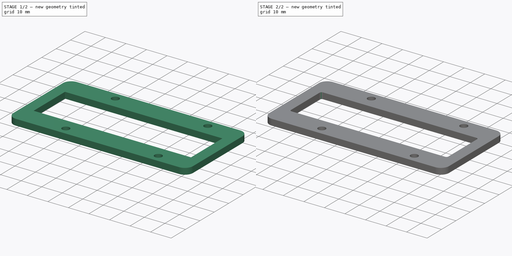
[diagram: build sequence overview — one tinted view per stage of 2, left to right]
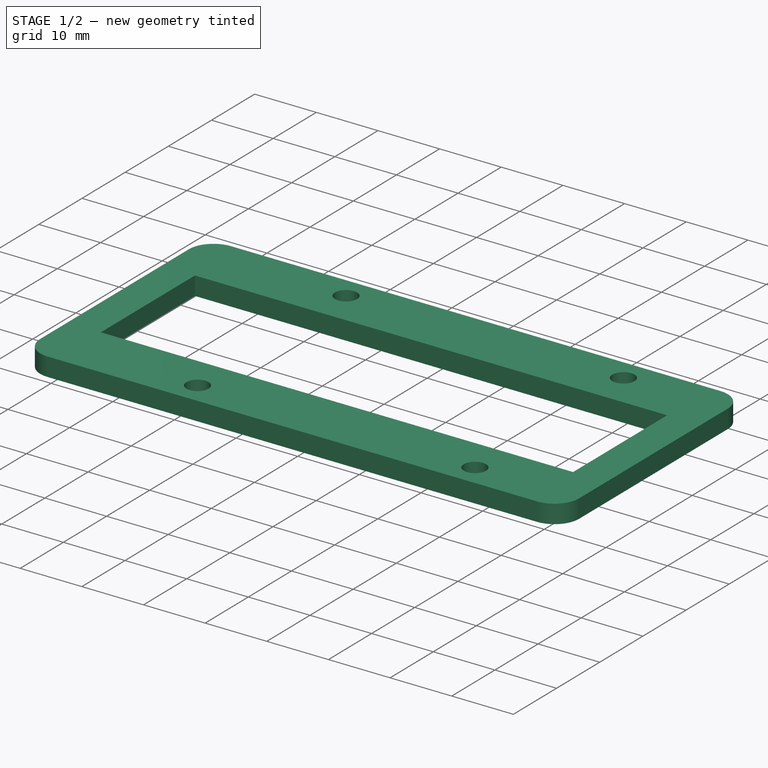
[diagram: stage 1 of 2 — iso view after this stage's code; geometry added in this stage tinted green]
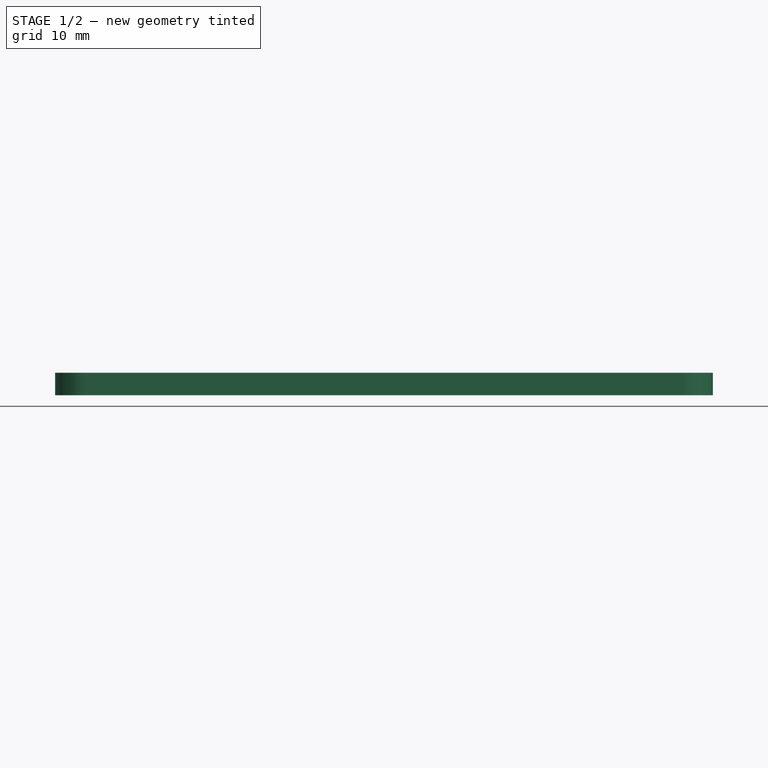
[diagram: stage 1 of 2 — front view after this stage's code; geometry added in this stage tinted green]
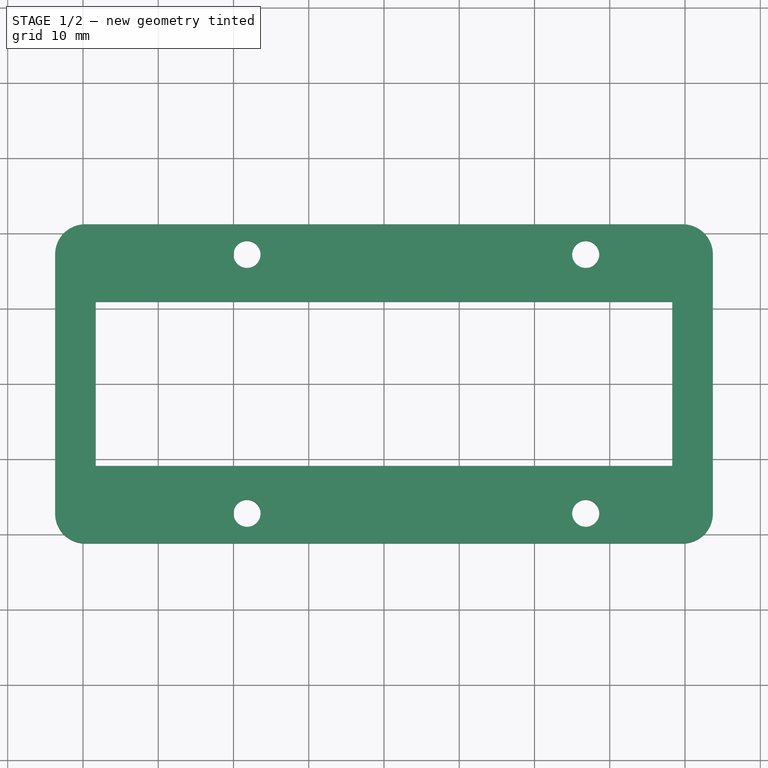
[diagram: stage 1 of 2 — top view after this stage's code; geometry added in this stage tinted green]
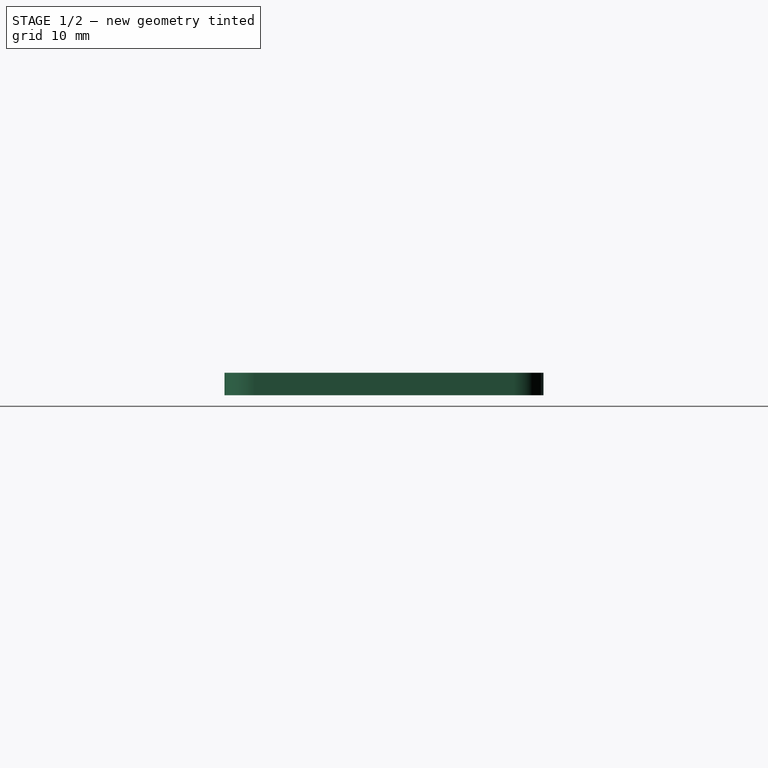
[diagram: stage 1 of 2 — right view after this stage's code; geometry added in this stage tinted green]
FCSTD DOCUMENT  (FreeCAD 0.21R33668 +26 (Git))
Label: kpSpacerV1.0-3mm
License: All rights reserved
LicenseURL: http://en.wikipedia.org/wiki/All_rights_reserved
objects: PartDesign::Fillet×2, Sketcher::SketchObject×1, PartDesign::Pad×1, PartDesign::Body×1
note: 8 computed .brp shape members not serialized (recipe doc carries the construction recipe); baked Part::Feature solids carry a one-line shape summary decoded from their .brp

FEATURE [Sketcher::SketchObject] Sketch
  FullyConstrained = true
  MapMode = 5
  Support = -> [XY_Plane]
  sketch-geometry (14):
    g0: LineSegment StartX=43.7 StartY=-21.2 StartZ=0 EndX=43.7 EndY=21.2 EndZ=0
    g1: LineSegment StartX=43.7 StartY=21.2 StartZ=0 EndX=-43.7 EndY=21.2 EndZ=0
    g2: LineSegment StartX=-43.7 StartY=21.2 StartZ=0 EndX=-43.7 EndY=-21.2 EndZ=0
    g3: LineSegment StartX=-43.7 StartY=-21.2 StartZ=0 EndX=43.7 EndY=-21.2 EndZ=0
    g4: GeomPoint X=0 Y=0 Z=0
    g5: Circle CenterX=-18.2 CenterY=17.2 CenterZ=0 NormalX=0 NormalY=0 NormalZ=1 AngleXU=0 Radius=1.8
    g6: Circle CenterX=-18.2 CenterY=-17.2 CenterZ=0 NormalX=0 NormalY=0 NormalZ=1 AngleXU=0 Radius=1.8
    g7: Circle CenterX=26.8 CenterY=-17.2 CenterZ=0 NormalX=0 NormalY=0 NormalZ=1 AngleXU=0 Radius=1.8
    g8: Circle CenterX=26.8 CenterY=17.2 CenterZ=0 NormalX=0 NormalY=0 NormalZ=1 AngleXU=0 Radius=1.8
    g9: LineSegment StartX=-38.3 StartY=-10.9 StartZ=0 EndX=-38.3 EndY=10.9 EndZ=0
    g10: LineSegment StartX=-38.3 StartY=10.9 StartZ=0 EndX=38.3 EndY=10.9 EndZ=0
    g11: LineSegment StartX=38.3 StartY=10.9 StartZ=0 EndX=38.3 EndY=-10.9 EndZ=0
    g12: LineSegment StartX=38.3 StartY=-10.9 StartZ=0 EndX=-38.3 EndY=-10.9 EndZ=0
    g13: GeomPoint X=0 Y=0 Z=0
  constraints (36):
    c: Coincident(g0,g1)
    c: Coincident(g1,g2)
    c: Coincident(g2,g3)
    c: Coincident(g3,g0)
    c: Horizontal(g1)
    c: Horizontal(g3)
    c: Vertical(g0)
    c: Vertical(g2)
    c: Symmetric(g1,g0,g4)
    c: Coincident(g4,g-1)
    c: DistanceY(g4,g1) = 21.2
    c: DistanceX(g1,g4) = 43.7
    c: Vertical(g5,g6)
    c: Vertical(g8,g7)
    c: Horizontal(g6,g7)
    c: Horizontal(g5,g8)
    c: Distance(g6,g7) = 45
    c: DistanceX(g6,g4) = 18.2
    c: DistanceY(g4,g5) = 17.2
    c: DistanceY(g6,g4) = 17.2
    c: Diameter(g5) = 3.6
    c: Equal(g5,g6)
    c: Equal(g5,g8)
    c: Equal(g5,g7)
    c: Coincident(g9,g10)
    c: Coincident(g10,g11)
    c: Coincident(g11,g12)
    c: Coincident(g12,g9)
    c: Horizontal(g10)
    c: Horizontal(g12)
    c: Vertical(g9)
    c: Vertical(g11)
    c: Symmetric(g10,g9,g13)
    c: Coincident(g13,g4)
    c: Distance(g12) = 76.6
    c: Distance(g9) = 21.8
FEATURE [PartDesign::Pad] Pad
  Direction = (0,0,1)
  Length = 3
  Length2 = 10
  Profile = -> Sketch
  ReferenceAxis = -> Sketch [N_Axis]
  Type = 0
FEATURE [PartDesign::Fillet] Fillet
  Base = -> Pad [Edge1,Edge8,Edge2,Edge5]
  BaseFeature = -> Pad
  Radius = 4
  SupportTransform = false
  UseAllEdges = false
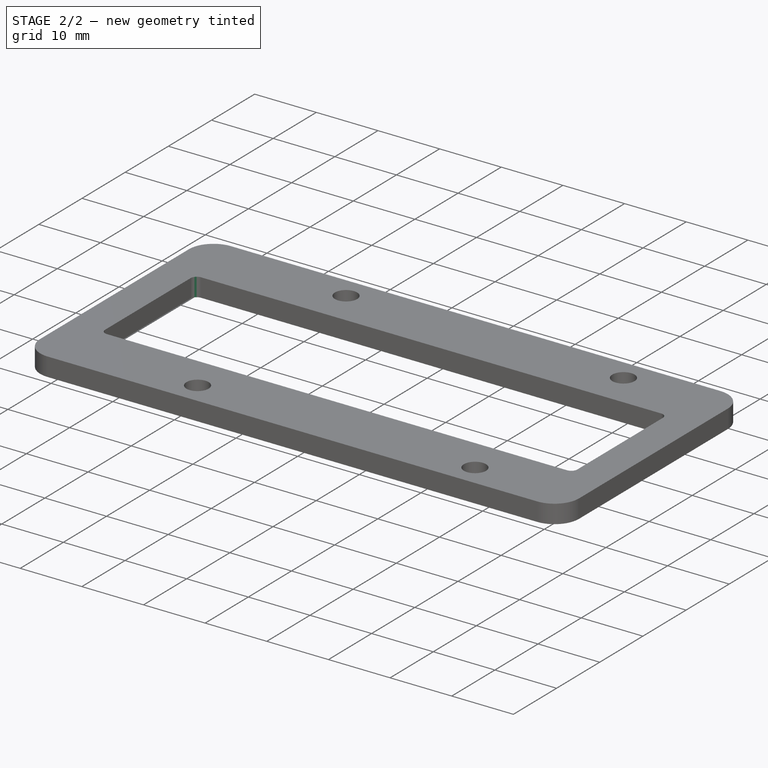
[diagram: stage 2 of 2 — iso view after this stage's code; geometry added in this stage tinted green]
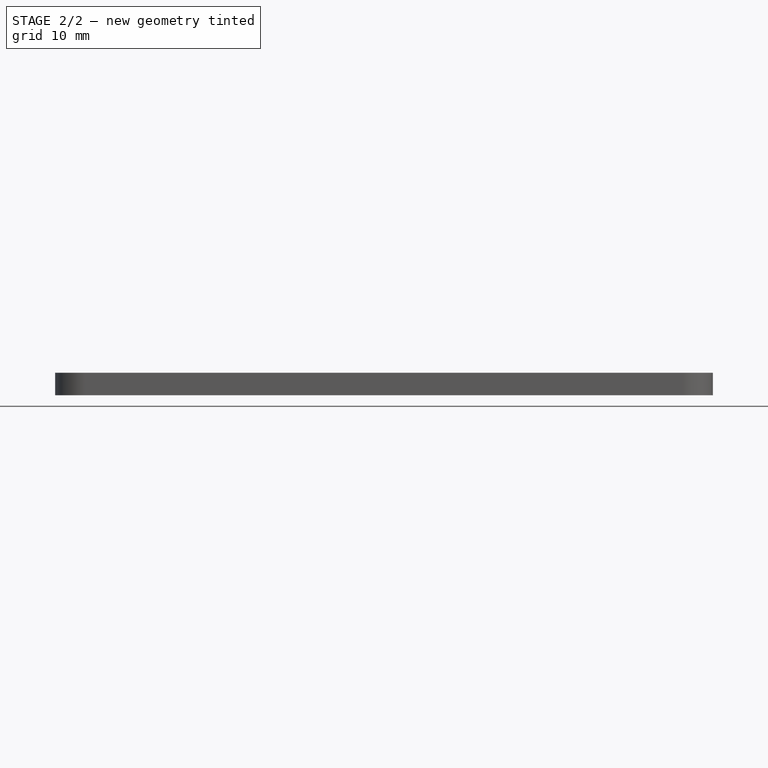
[diagram: stage 2 of 2 — front view after this stage's code; geometry added in this stage tinted green]
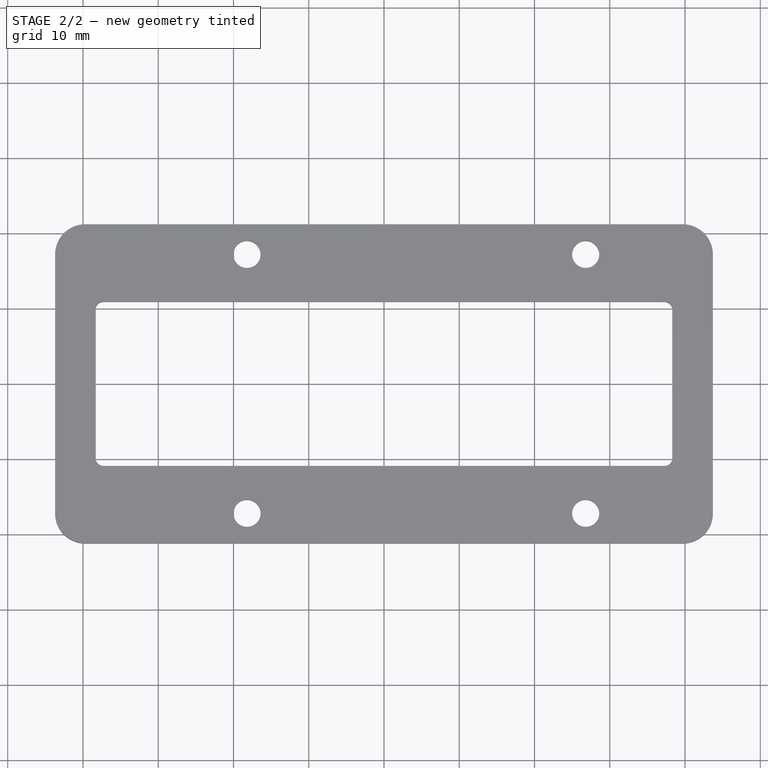
[diagram: stage 2 of 2 — top view after this stage's code; geometry added in this stage tinted green]
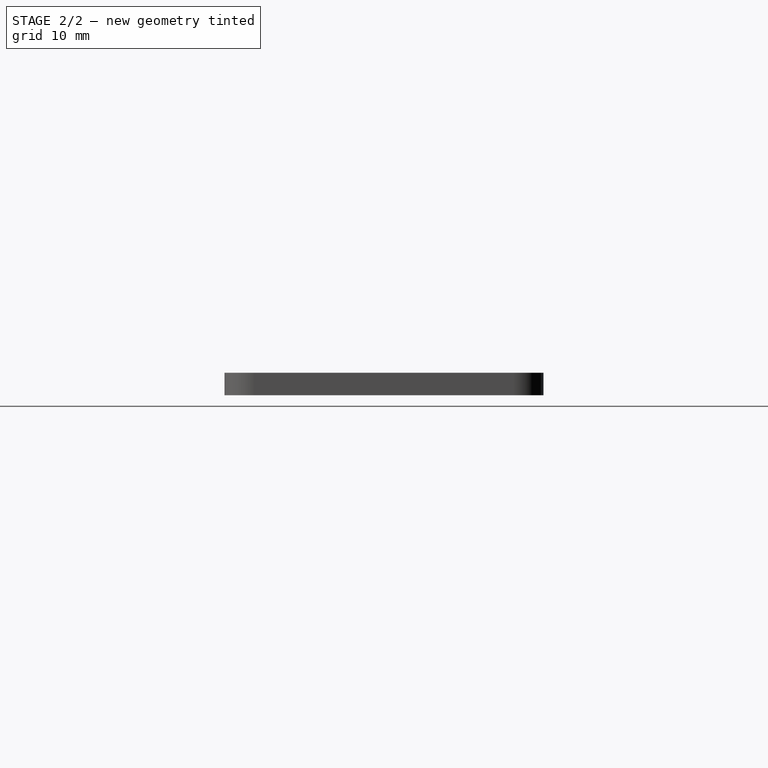
[diagram: stage 2 of 2 — right view after this stage's code; geometry added in this stage tinted green]
FEATURE [PartDesign::Fillet] Fillet001
  Base = -> Fillet [Edge43,Edge44,Edge41,Edge42]
  BaseFeature = -> Fillet
  Radius = 1
  SupportTransform = false
  UseAllEdges = false
FEATURE [PartDesign::Body] Body
  Group = -> [Sketch,Pad,Fillet,Fillet001]
  Origin = -> Origin
  Tip = -> Fillet001
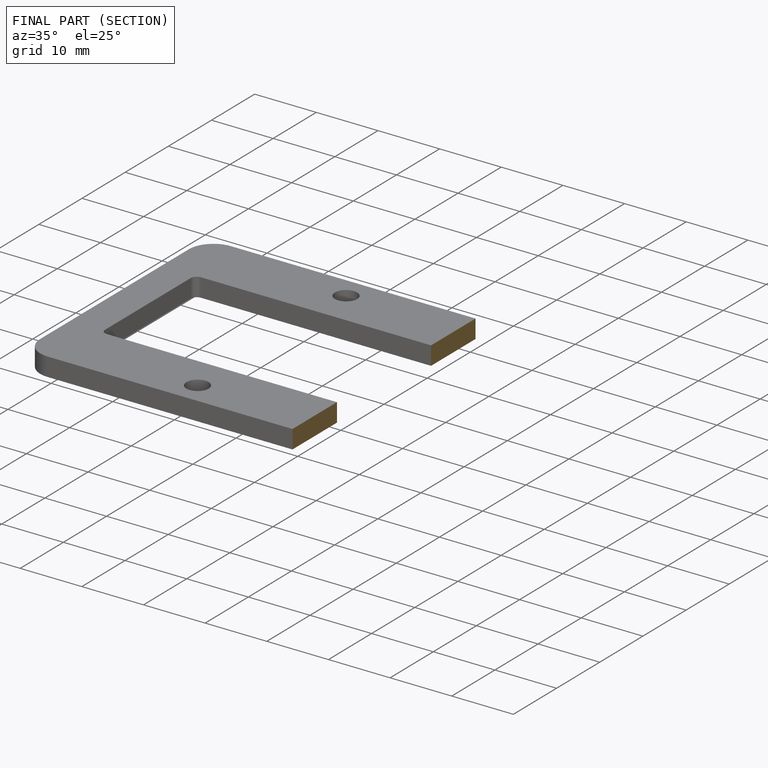
[diagram: finished part — half-section view (interior)]
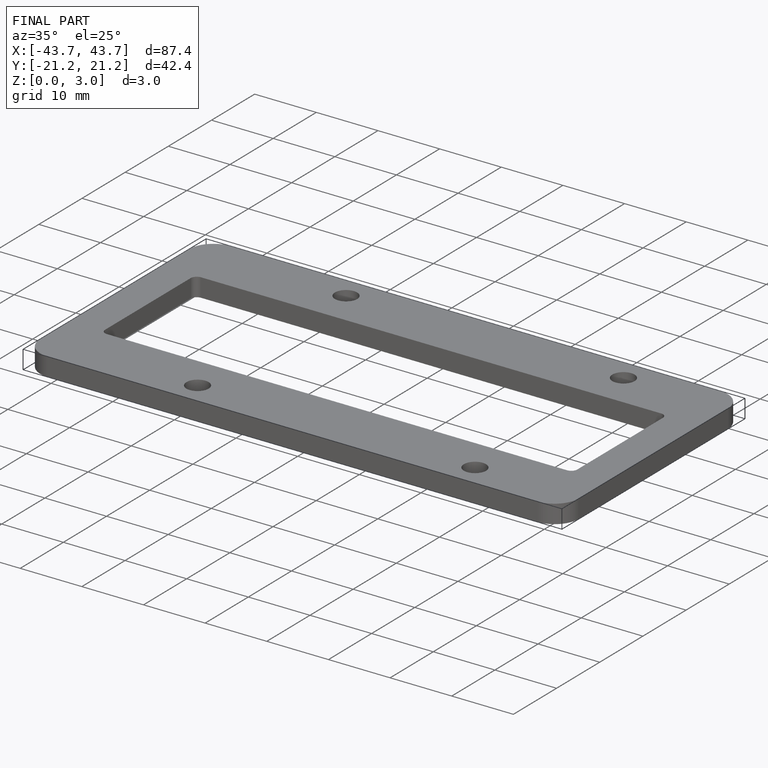
[diagram: finished part — iso view with bounding-box wireframe]
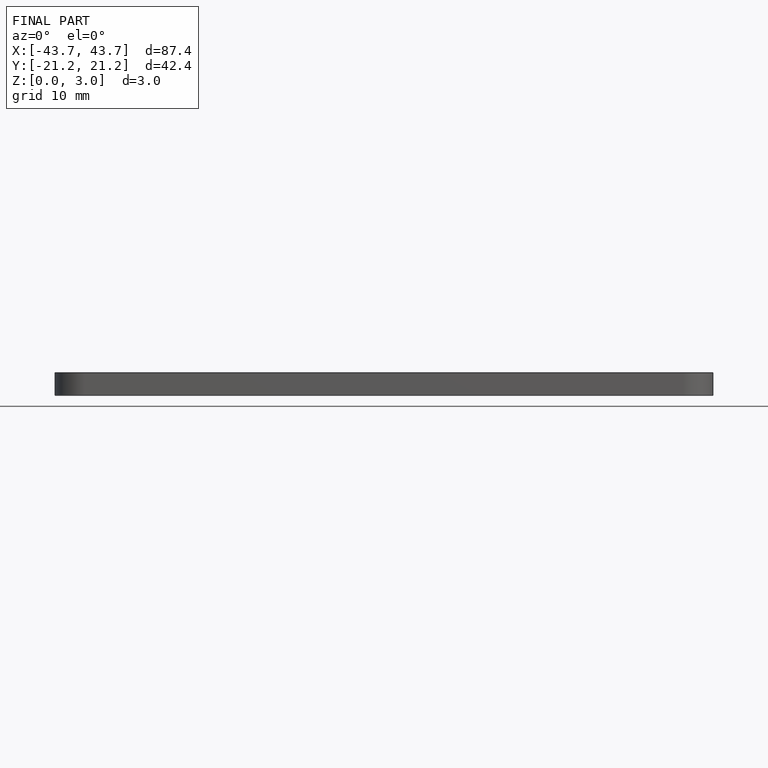
[diagram: finished part — front view with bounding-box wireframe]
